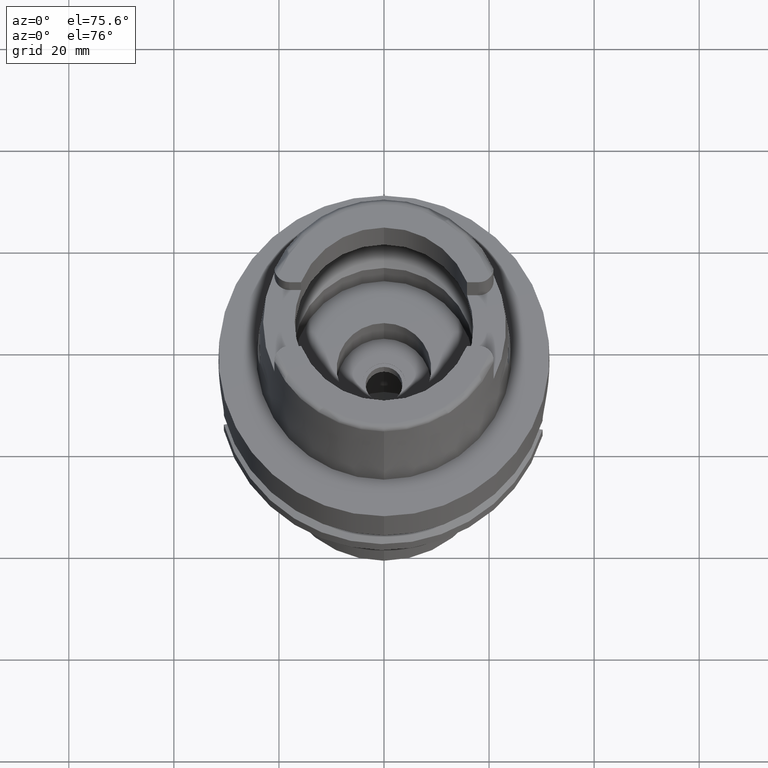
[diagram: clean part render]
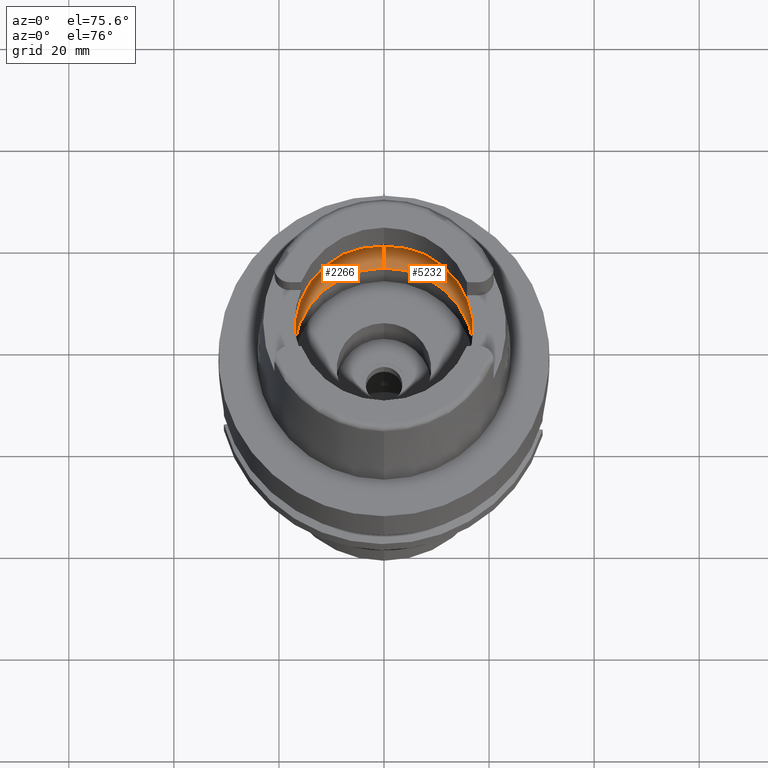
[diagram: same view with one multi-face feature highlighted, each face labeled with its STEP entity id]
A machine part, auxiliary view. The highlighted faces form ONE feature: a constant-radius fillet chain: 2 tangent blend faces with common blend radius 8 mm. The faces share edges in the B-rep.
Their STEP definitions:
[1] entity #5232 (Torus):
#69 = DIRECTION ( 'NONE',  ( -1.000000000000000000, 0.0000000000000000000, 0.0000000000000000000 ) ) ;
#76 = VERTEX_POINT ( 'NONE', #985 ) ;
#155 = CARTESIAN_POINT ( 'NONE',  ( 0.0000000000000000000, -17.25000000000000000, 0.1500000000000999700 ) ) ;
#209 = CARTESIAN_POINT ( 'NONE',  ( 19.88332301270218849, -2.178372191595286722, 5.921392438207989883 ) ) ;
#287 = CARTESIAN_POINT ( 'NONE',  ( 19.92646951840612246, -1.305026090026948804, 5.484399317726082579 ) ) ;
#292 = AXIS2_PLACEMENT_3D ( 'NONE', #355, #3775, #2926 ) ;
#355 = CARTESIAN_POINT ( 'NONE',  ( 0.0000000000000000000, 0.0000000000000000000, 6.186348233825000875 ) ) ;
#359 = CARTESIAN_POINT ( 'NONE',  ( 19.94501428475999560, 0.4959095983523816309, 5.249999999999999112 ) ) ;
#577 = CARTESIAN_POINT ( 'NONE',  ( 0.0000000000000000000, 12.00000000000000000, 6.186348233825000875 ) ) ;
#600 = EDGE_CURVE ( 'NONE', #4126, #5387, #2218, .T. ) ;
#636 = CARTESIAN_POINT ( 'NONE',  ( 19.93856666885426776, -0.8185636124059638696, 5.338679045133562617 ) ) ;
#702 = EDGE_CURVE ( 'NONE', #3036, #1171, #1532, .T. ) ;
#742 = AXIS2_PLACEMENT_3D ( 'NONE', #1609, #2961, #4286 ) ;
#772 = EDGE_CURVE ( 'NONE', #4126, #1910, #822, .T. ) ;
#822 = CIRCLE ( 'NONE', #4085, 17.25000000000000000 ) ;
#885 = ORIENTED_EDGE ( 'NONE', *, *, #2235, .F. ) ;
#888 = DIRECTION ( 'NONE',  ( 1.000000000000000000, 0.0000000000000000000, 0.0000000000000000000 ) ) ;
#929 = CIRCLE ( 'NONE', #292, 20.00000000000000000 ) ;
#985 = CARTESIAN_POINT ( 'NONE',  ( 19.84575864665999845, 2.479085262491000030, 6.186348233825000875 ) ) ;
#1097 = CARTESIAN_POINT ( 'NONE',  ( 19.93096049696546856, -1.157939335591919860, 5.432578789541300246 ) ) ;
#1171 = VERTEX_POINT ( 'NONE', #3757 ) ;
#1260 = FACE_OUTER_BOUND ( 'NONE', #1354, .T. ) ;
#1281 = ORIENTED_EDGE ( 'NONE', *, *, #2242, .F. ) ;
#1354 = EDGE_LOOP ( 'NONE', ( #2284, #4278, #885, #4899, #2825, #1281, #2808 ) ) ;
#1356 = CARTESIAN_POINT ( 'NONE',  ( 19.92518041982365418, 1.343450277255565872, 5.498899909475031045 ) ) ;
#1512 = CARTESIAN_POINT ( 'NONE',  ( 19.93655178888372248, -0.9261198900591437466, 5.364559530321087344 ) ) ;
#1532 = B_SPLINE_CURVE_WITH_KNOTS ( 'NONE', 3,
 ( #2001, #3653, #5397, #636, #1512, #2888, #1097, #2425, #3242, #287, #2393, #4098, #5427, #209, #1976 ),
 .UNSPECIFIED., .F., .F.,
 ( 4, 2, 2, 1, 1, 1, 2, 2, 4 ),
 ( 0.0000000000000000000, 0.2499999999999987788, 0.3749999999999982792, 0.4374999999999980571, 0.4687499999999978906, 0.4843749999999975020, 0.4921874999999975575, 0.4999999999999975575, 1.000000000000000000 ),
 .UNSPECIFIED. ) ;
#1609 = CARTESIAN_POINT ( 'NONE',  ( 0.0000000000000000000, 0.0000000000000000000, 6.186348233825000875 ) ) ;
#1722 = CARTESIAN_POINT ( 'NONE',  ( 0.0000000000000000000, 20.00000000000000000, 6.186348233825000875 ) ) ;
#1829 = DIRECTION ( 'NONE',  ( 0.0000000000000000000, -0.6562500000000006661, -0.7545435292281016393 ) ) ;
#1910 = VERTEX_POINT ( 'NONE', #3410 ) ;
#1976 = CARTESIAN_POINT ( 'NONE',  ( 19.84575864665999845, -2.479085262491000030, 6.186348233825000875 ) ) ;
#2001 = CARTESIAN_POINT ( 'NONE',  ( 19.94501428475999916, 0.0000000000000000000, 5.250000000000000000 ) ) ;
#2091 = CARTESIAN_POINT ( 'NONE',  ( 19.90654626797081761, 1.769934426146181128, 5.691841251131339874 ) ) ;
#2218 = CIRCLE ( 'NONE', #5463, 7.999999999999992895 ) ;
#2229 = DIRECTION ( 'NONE',  ( 0.0000000000000000000, 0.0000000000000000000, 1.000000000000000000 ) ) ;
#2235 = EDGE_CURVE ( 'NONE', #1910, #4572, #4439, .T. ) ;
#2242 = EDGE_CURVE ( 'NONE', #1171, #5387, #4986, .T. ) ;
#2263 = CARTESIAN_POINT ( 'NONE',  ( 0.0000000000000000000, -12.00000000000000000, 6.186348233825000875 ) ) ;
#2284 = ORIENTED_EDGE ( 'NONE', *, *, #2506, .F. ) ;
#2369 = AXIS2_PLACEMENT_3D ( 'NONE', #577, #888, #2667 ) ;
#2393 = CARTESIAN_POINT ( 'NONE',  ( 19.92607283891191727, -1.317061137141596561, 5.488890315884850324 ) ) ;
#2425 = CARTESIAN_POINT ( 'NONE',  ( 19.92840411800285594, -1.244366584479167814, 5.462313247185328180 ) ) ;
#2506 = EDGE_CURVE ( 'NONE', #76, #3036, #3509, .T. ) ;
#2667 = DIRECTION ( 'NONE',  ( 0.0000000000000000000, 0.6562500000000006661, -0.7545435292281016393 ) ) ;
#2688 = CARTESIAN_POINT ( 'NONE',  ( 19.94501428475999916, 0.0000000000000000000, 5.250000000000000000 ) ) ;
#2752 = CARTESIAN_POINT ( 'NONE',  ( 0.0000000000000000000, 0.0000000000000000000, 6.186348233825000875 ) ) ;
#2808 = ORIENTED_EDGE ( 'NONE', *, *, #702, .F. ) ;
#2825 = ORIENTED_EDGE ( 'NONE', *, *, #600, .T. ) ;
#2827 = CARTESIAN_POINT ( 'NONE',  ( 19.91448735469504427, 1.610406046188481932, 5.612875421313382240 ) ) ;
#2888 = CARTESIAN_POINT ( 'NONE',  ( 19.93292500493674524, -1.081634238850528451, 5.408973163817647034 ) ) ;
#2926 = DIRECTION ( 'NONE',  ( 0.0000000000000000000, 1.000000000000000000, 0.0000000000000000000 ) ) ;
#2961 = DIRECTION ( 'NONE',  ( 0.0000000000000000000, 0.0000000000000000000, 1.000000000000000000 ) ) ;
#2984 = CARTESIAN_POINT ( 'NONE',  ( 19.91820185418519884, 1.528668694906667236, 5.574772838317966439 ) ) ;
#3036 = VERTEX_POINT ( 'NONE', #3887 ) ;
#3107 = CARTESIAN_POINT ( 'NONE',  ( 19.92391809393505397, 1.379668374353000937, 5.512961660982391265 ) ) ;
#3242 = CARTESIAN_POINT ( 'NONE',  ( 19.92705981527248937, -1.286926606873724177, 5.477698152406411225 ) ) ;
#3260 = CARTESIAN_POINT ( 'NONE',  ( 19.84575864665999845, 2.479085262491000030, 6.186348233825000875 ) ) ;
#3410 = CARTESIAN_POINT ( 'NONE',  ( 0.0000000000000000000, 17.25000000000000000, 0.1500000000000999700 ) ) ;
#3509 = B_SPLINE_CURVE_WITH_KNOTS ( 'NONE', 3,
 ( #3260, #5514, #4645, #4978, #2091, #2827, #2984, #5166, #3107, #4815, #1356, #4729, #3889, #359, #2688 ),
 .UNSPECIFIED., .F., .F.,
 ( 4, 2, 2, 1, 1, 1, 2, 2, 4 ),
 ( 0.0000000000000000000, 0.2500000000000033862, 0.3750000000000049405, 0.4375000000000056621, 0.4687500000000057176, 0.4843750000000056621, 0.4921875000000054956, 0.5000000000000053291, 1.000000000000000000 ),
 .UNSPECIFIED. ) ;
#3527 = CARTESIAN_POINT ( 'NONE',  ( 0.0000000000000000000, -20.00000000000000000, 6.186348233825000875 ) ) ;
#3653 = CARTESIAN_POINT ( 'NONE',  ( 19.94501428476000271, -0.2480012822880987844, 5.249999999999999112 ) ) ;
#3757 = CARTESIAN_POINT ( 'NONE',  ( 19.84575864665999845, -2.479085262491000030, 6.186348233825000875 ) ) ;
#3775 = DIRECTION ( 'NONE',  ( 0.0000000000000000000, 0.0000000000000000000, -1.000000000000000000 ) ) ;
#3887 = CARTESIAN_POINT ( 'NONE',  ( 19.94501428475999916, 0.0000000000000000000, 5.250000000000000000 ) ) ;
#3889 = CARTESIAN_POINT ( 'NONE',  ( 19.93856757259323231, 0.9457801821284733679, 5.348172806034195759 ) ) ;
#3985 = DIRECTION ( 'NONE',  ( 0.9922879323327794543, -0.1239542631244973381, 0.0000000000000000000 ) ) ;
#4085 = AXIS2_PLACEMENT_3D ( 'NONE', #5247, #2229, #4466 ) ;
#4098 = CARTESIAN_POINT ( 'NONE',  ( 19.92591691872320681, -1.321755966737424792, 5.490652197696729075 ) ) ;
#4126 = VERTEX_POINT ( 'NONE', #155 ) ;
#4278 = ORIENTED_EDGE ( 'NONE', *, *, #5616, .F. ) ;
#4286 = DIRECTION ( 'NONE',  ( 0.0000000000000000000, 1.000000000000000000, 0.0000000000000000000 ) ) ;
#4383 = TOROIDAL_SURFACE ( 'NONE', #742, 12.00000000000000000, 8.000000000000000000 ) ;
#4439 = CIRCLE ( 'NONE', #2369, 7.999999999999992895 ) ;
#4441 = DIRECTION ( 'NONE',  ( 0.0000000000000000000, 0.0000000000000000000, -1.000000000000000000 ) ) ;
#4466 = DIRECTION ( 'NONE',  ( 0.0000000000000000000, -1.000000000000000000, 0.0000000000000000000 ) ) ;
#4572 = VERTEX_POINT ( 'NONE', #1722 ) ;
#4645 = CARTESIAN_POINT ( 'NONE',  ( 19.88059055109615159, 2.158396495719459462, 5.925189677144884648 ) ) ;
#4729 = CARTESIAN_POINT ( 'NONE',  ( 19.92547268850448816, 1.334865291962832767, 5.495620507227335416 ) ) ;
#4815 = CARTESIAN_POINT ( 'NONE',  ( 19.92467869001661995, 1.357961439187409525, 5.504502721927527986 ) ) ;
#4899 = ORIENTED_EDGE ( 'NONE', *, *, #772, .F. ) ;
#4978 = CARTESIAN_POINT ( 'NONE',  ( 19.90056942649606597, 1.871016442818389525, 5.748161141865908874 ) ) ;
#4986 = CIRCLE ( 'NONE', #5523, 20.00000000000001421 ) ;
#5166 = CARTESIAN_POINT ( 'NONE',  ( 19.92208736014775994, 1.429898011590186924, 5.533076699460339754 ) ) ;
#5232 = ADVANCED_FACE ( 'NONE', ( #1260 ), #4383, .F. ) ;
#5247 = CARTESIAN_POINT ( 'NONE',  ( 0.0000000000000000000, 0.0000000000000000000, 0.1500000000000999700 ) ) ;
#5387 = VERTEX_POINT ( 'NONE', #3527 ) ;
#5397 = CARTESIAN_POINT ( 'NONE',  ( 19.94340238078356720, -0.4850176595367738930, 5.274610361541468784 ) ) ;
#5427 = CARTESIAN_POINT ( 'NONE',  ( 19.90996060949646207, -1.795819319521763990, 5.670329520825307057 ) ) ;
#5463 = AXIS2_PLACEMENT_3D ( 'NONE', #2263, #69, #1829 ) ;
#5514 = CARTESIAN_POINT ( 'NONE',  ( 19.86454016619522989, 2.328734038445912979, 6.053875015849456531 ) ) ;
#5523 = AXIS2_PLACEMENT_3D ( 'NONE', #2752, #4441, #3985 ) ;
#5616 = EDGE_CURVE ( 'NONE', #4572, #76, #929, .T. ) ;
[2] entity #2266 (Torus):
#69 = DIRECTION ( 'NONE',  ( -1.000000000000000000, 0.0000000000000000000, 0.0000000000000000000 ) ) ;
#80 = VERTEX_POINT ( 'NONE', #3352 ) ;
#118 = DIRECTION ( 'NONE',  ( 0.0000000000000000000, 0.0000000000000000000, 1.000000000000000000 ) ) ;
#129 = DIRECTION ( 'NONE',  ( 0.0000000000000000000, 1.000000000000000000, 0.0000000000000000000 ) ) ;
#155 = CARTESIAN_POINT ( 'NONE',  ( 0.0000000000000000000, -17.25000000000000000, 0.1500000000000999700 ) ) ;
#202 = CARTESIAN_POINT ( 'NONE',  ( -19.94501428476000271, 0.2479290550774200796, 5.250000000000000000 ) ) ;
#233 = CARTESIAN_POINT ( 'NONE',  ( -19.92706179647762355, 1.286754988675973044, 5.477635449957357849 ) ) ;
#246 = CARTESIAN_POINT ( 'NONE',  ( -19.92547252417883641, -1.334867513091082314, 5.495621353218018257 ) ) ;
#257 = CARTESIAN_POINT ( 'NONE',  ( -19.93096204774571234, 1.157762075074569186, 5.432521242666707550 ) ) ;
#351 = ORIENTED_EDGE ( 'NONE', *, *, #4949, .F. ) ;
#511 = EDGE_LOOP ( 'NONE', ( #3396, #4510, #5251, #5484, #1168, #1798, #351 ) ) ;
#577 = CARTESIAN_POINT ( 'NONE',  ( 0.0000000000000000000, 12.00000000000000000, 6.186348233825000875 ) ) ;
#600 = EDGE_CURVE ( 'NONE', #4126, #5387, #2218, .T. ) ;
#649 = CIRCLE ( 'NONE', #5467, 20.00000000000001421 ) ;
#651 = CARTESIAN_POINT ( 'NONE',  ( -19.90654609288262122, -1.769936306168619966, 5.691842260241858575 ) ) ;
#887 = TOROIDAL_SURFACE ( 'NONE', #2014, 12.00000000000000000, 8.000000000000000000 ) ;
#888 = DIRECTION ( 'NONE',  ( 1.000000000000000000, 0.0000000000000000000, 0.0000000000000000000 ) ) ;
#950 = DIRECTION ( 'NONE',  ( 0.0000000000000000000, 1.000000000000000000, 0.0000000000000000000 ) ) ;
#1022 = CARTESIAN_POINT ( 'NONE',  ( -19.90056925889987127, -1.871018165099524122, 5.748162139564427342 ) ) ;
#1140 = CARTESIAN_POINT ( 'NONE',  ( -19.84575864665999845, -2.479085262491000030, 6.186348233825000875 ) ) ;
#1168 = ORIENTED_EDGE ( 'NONE', *, *, #3259, .F. ) ;
#1178 = CARTESIAN_POINT ( 'NONE',  ( 0.0000000000000000000, 0.0000000000000000000, 6.186348233825000875 ) ) ;
#1300 = CARTESIAN_POINT ( 'NONE',  ( -19.84575864665999845, 2.479085262489999941, 6.186348233825000875 ) ) ;
#1645 = CIRCLE ( 'NONE', #3546, 20.00000000000000000 ) ;
#1722 = CARTESIAN_POINT ( 'NONE',  ( 0.0000000000000000000, 20.00000000000000000, 6.186348233825000875 ) ) ;
#1749 = CIRCLE ( 'NONE', #4895, 17.25000000000000000 ) ;
#1798 = ORIENTED_EDGE ( 'NONE', *, *, #3417, .F. ) ;
#1829 = DIRECTION ( 'NONE',  ( 0.0000000000000000000, -0.6562500000000006661, -0.7545435292281016393 ) ) ;
#1910 = VERTEX_POINT ( 'NONE', #3410 ) ;
#1998 = CARTESIAN_POINT ( 'NONE',  ( -19.92647156474819425, 1.304855687905149608, 5.484336066838880086 ) ) ;
#2014 = AXIS2_PLACEMENT_3D ( 'NONE', #2341, #118, #950 ) ;
#2048 = EDGE_CURVE ( 'NONE', #5387, #2069, #1645, .T. ) ;
#2069 = VERTEX_POINT ( 'NONE', #5528 ) ;
#2218 = CIRCLE ( 'NONE', #5463, 7.999999999999992895 ) ;
#2235 = EDGE_CURVE ( 'NONE', #1910, #4572, #4439, .T. ) ;
#2263 = CARTESIAN_POINT ( 'NONE',  ( 0.0000000000000000000, -12.00000000000000000, 6.186348233825000875 ) ) ;
#2266 = ADVANCED_FACE ( 'NONE', ( #4416 ), #887, .F. ) ;
#2289 = B_SPLINE_CURVE_WITH_KNOTS ( 'NONE', 3,
 ( #4093, #202, #4124, #2422, #4980, #4546, #257, #3733, #233, #1998, #5448, #3287, #5007, #5150, #1300 ),
 .UNSPECIFIED., .F., .F.,
 ( 4, 2, 2, 1, 1, 1, 2, 2, 4 ),
 ( 0.0000000000000000000, 0.2500000000000052736, 0.3750000000000080491, 0.4375000000000094369, 0.4687500000000099365, 0.4843750000000099920, 0.4921875000000100475, 0.5000000000000101030, 1.000000000000000000 ),
 .UNSPECIFIED. ) ;
#2322 = DIRECTION ( 'NONE',  ( 0.0000000000000000000, 0.0000000000000000000, 1.000000000000000000 ) ) ;
#2341 = CARTESIAN_POINT ( 'NONE',  ( 0.0000000000000000000, 0.0000000000000000000, 6.186348233825000875 ) ) ;
#2355 = CARTESIAN_POINT ( 'NONE',  ( -19.91448717745985775, -1.610408095139941542, 5.612876396282293179 ) ) ;
#2369 = AXIS2_PLACEMENT_3D ( 'NONE', #577, #888, #2667 ) ;
#2412 = CARTESIAN_POINT ( 'NONE',  ( -19.86454009060478398, -2.328734643576319652, 6.053875549024845704 ) ) ;
#2422 = CARTESIAN_POINT ( 'NONE',  ( -19.93856738032332743, 0.8183990517512812479, 5.338642722793317752 ) ) ;
#2510 = CARTESIAN_POINT ( 'NONE',  ( 0.0000000000000000000, 0.0000000000000000000, 6.186348233825000875 ) ) ;
#2667 = DIRECTION ( 'NONE',  ( 0.0000000000000000000, 0.6562500000000006661, -0.7545435292281016393 ) ) ;
#2740 = EDGE_CURVE ( 'NONE', #1910, #4126, #1749, .T. ) ;
#2916 = DIRECTION ( 'NONE',  ( 0.0000000000000000000, -1.000000000000000000, 0.0000000000000000000 ) ) ;
#2917 = DIRECTION ( 'NONE',  ( -0.9922879323327794543, 0.1239542631244973381, 0.0000000000000000000 ) ) ;
#3201 = CARTESIAN_POINT ( 'NONE',  ( -19.92467852483092017, -1.357963622241911139, 5.504503570019525505 ) ) ;
#3259 = EDGE_CURVE ( 'NONE', #5194, #4572, #649, .T. ) ;
#3287 = CARTESIAN_POINT ( 'NONE',  ( -19.92591906827004777, 1.321585501799907636, 5.490587994735142807 ) ) ;
#3308 = CARTESIAN_POINT ( 'NONE',  ( -19.92391792695806529, -1.379670552742549017, 5.512962522875360705 ) ) ;
#3352 = CARTESIAN_POINT ( 'NONE',  ( -19.94501428475999916, 0.0000000000000000000, 5.250000000000000000 ) ) ;
#3396 = ORIENTED_EDGE ( 'NONE', *, *, #2048, .F. ) ;
#3410 = CARTESIAN_POINT ( 'NONE',  ( 0.0000000000000000000, 17.25000000000000000, 0.1500000000000999700 ) ) ;
#3417 = EDGE_CURVE ( 'NONE', #80, #5194, #2289, .T. ) ;
#3527 = CARTESIAN_POINT ( 'NONE',  ( 0.0000000000000000000, -20.00000000000000000, 6.186348233825000875 ) ) ;
#3546 = AXIS2_PLACEMENT_3D ( 'NONE', #1178, #4693, #2916 ) ;
#3695 = CARTESIAN_POINT ( 'NONE',  ( -19.93856751838270824, -0.9457802407118157673, 5.348172554885747054 ) ) ;
#3722 = CARTESIAN_POINT ( 'NONE',  ( -19.91820167814924503, -1.528670811425639542, 5.574773783465068355 ) ) ;
#3733 = CARTESIAN_POINT ( 'NONE',  ( -19.92840595086945044, 1.244192535817004952, 5.462252019518771817 ) ) ;
#4000 = B_SPLINE_CURVE_WITH_KNOTS ( 'NONE', 3,
 ( #1140, #2412, #4139, #1022, #651, #2355, #3722, #5464, #3308, #3201, #4535, #246, #3695, #5380, #4566 ),
 .UNSPECIFIED., .F., .F.,
 ( 4, 2, 2, 1, 1, 1, 2, 2, 4 ),
 ( 0.0000000000000000000, 0.2499999999999957812, 0.3749999999999935607, 0.4374999999999926725, 0.4687499999999921729, 0.4843749999999920064, 0.4921874999999919509, 0.4999999999999920064, 1.000000000000000000 ),
 .UNSPECIFIED. ) ;
#4093 = CARTESIAN_POINT ( 'NONE',  ( -19.94501428475999916, 0.0000000000000000000, 5.250000000000000000 ) ) ;
#4124 = CARTESIAN_POINT ( 'NONE',  ( -19.94340255865083833, 0.4848947565550238425, 5.274596189389358258 ) ) ;
#4126 = VERTEX_POINT ( 'NONE', #155 ) ;
#4139 = CARTESIAN_POINT ( 'NONE',  ( -19.88059042415784816, -2.158397635262351066, 5.925190505596781065 ) ) ;
#4416 = FACE_OUTER_BOUND ( 'NONE', #511, .T. ) ;
#4439 = CIRCLE ( 'NONE', #2369, 7.999999999999992895 ) ;
#4510 = ORIENTED_EDGE ( 'NONE', *, *, #600, .F. ) ;
#4535 = CARTESIAN_POINT ( 'NONE',  ( -19.92518025587951058, -1.343452463015866627, 5.498900748199903710 ) ) ;
#4546 = CARTESIAN_POINT ( 'NONE',  ( -19.93292633894124677, 1.081457122333630005, 5.408919853930951760 ) ) ;
#4566 = CARTESIAN_POINT ( 'NONE',  ( -19.94501428475999916, 0.0000000000000000000, 5.250000000000000000 ) ) ;
#4572 = VERTEX_POINT ( 'NONE', #1722 ) ;
#4581 = DIRECTION ( 'NONE',  ( 0.0000000000000000000, 0.0000000000000000000, -1.000000000000000000 ) ) ;
#4646 = CARTESIAN_POINT ( 'NONE',  ( -19.84575864665999845, 2.479085262489999941, 6.186348233825000875 ) ) ;
#4693 = DIRECTION ( 'NONE',  ( 0.0000000000000000000, 0.0000000000000000000, -1.000000000000000000 ) ) ;
#4895 = AXIS2_PLACEMENT_3D ( 'NONE', #5348, #2322, #129 ) ;
#4949 = EDGE_CURVE ( 'NONE', #2069, #80, #4000, .T. ) ;
#4980 = CARTESIAN_POINT ( 'NONE',  ( -19.93655272268686929, 0.9259470818488849675, 5.364515645286687118 ) ) ;
#5007 = CARTESIAN_POINT ( 'NONE',  ( -19.90996177496790409, 1.795767083472348036, 5.670284047756602774 ) ) ;
#5150 = CARTESIAN_POINT ( 'NONE',  ( -19.88332346670455664, 2.178368557158631091, 5.921389235935963669 ) ) ;
#5194 = VERTEX_POINT ( 'NONE', #4646 ) ;
#5251 = ORIENTED_EDGE ( 'NONE', *, *, #2740, .F. ) ;
#5348 = CARTESIAN_POINT ( 'NONE',  ( 0.0000000000000000000, 0.0000000000000000000, 0.1500000000000999700 ) ) ;
#5380 = CARTESIAN_POINT ( 'NONE',  ( -19.94501428475999916, -0.4959087842382808309, 5.249999999999998224 ) ) ;
#5387 = VERTEX_POINT ( 'NONE', #3527 ) ;
#5448 = CARTESIAN_POINT ( 'NONE',  ( -19.92607492902602218, 1.316891584247062985, 5.488826718527325177 ) ) ;
#5463 = AXIS2_PLACEMENT_3D ( 'NONE', #2263, #69, #1829 ) ;
#5464 = CARTESIAN_POINT ( 'NONE',  ( -19.92208718948823076, -1.429900174883156350, 5.533077591732342704 ) ) ;
#5467 = AXIS2_PLACEMENT_3D ( 'NONE', #2510, #4581, #2917 ) ;
#5484 = ORIENTED_EDGE ( 'NONE', *, *, #2235, .T. ) ;
#5528 = CARTESIAN_POINT ( 'NONE',  ( -19.84575864665999845, -2.479085262491000030, 6.186348233825000875 ) ) ;